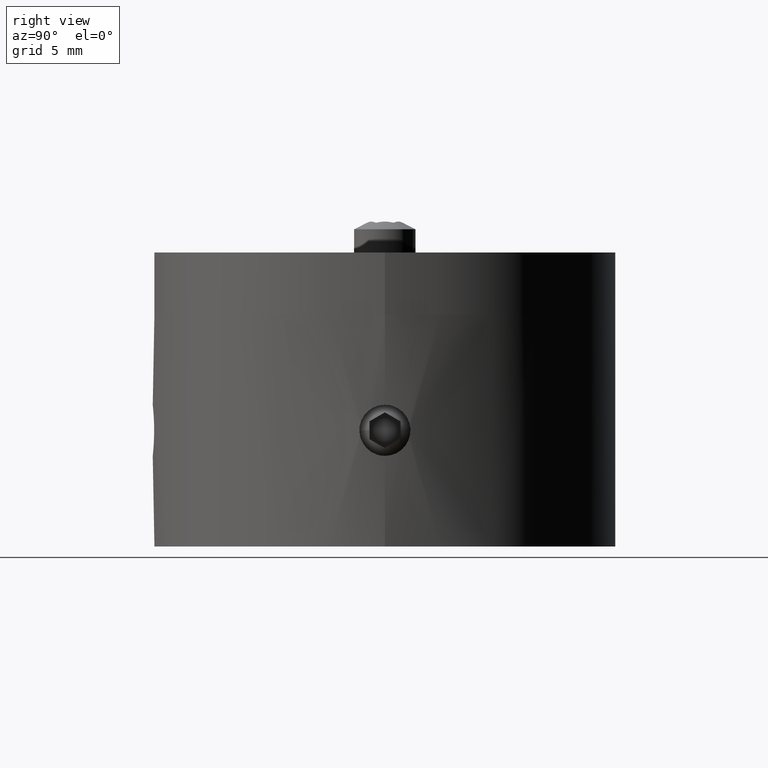
[diagram: clean part render]
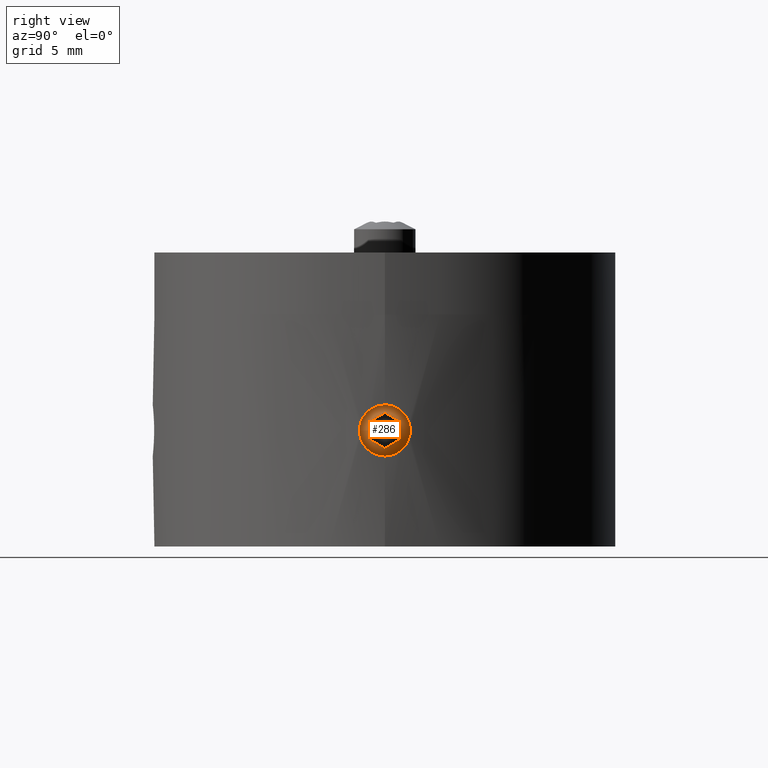
[diagram: same view with one face highlighted and labeled with its STEP entity id]
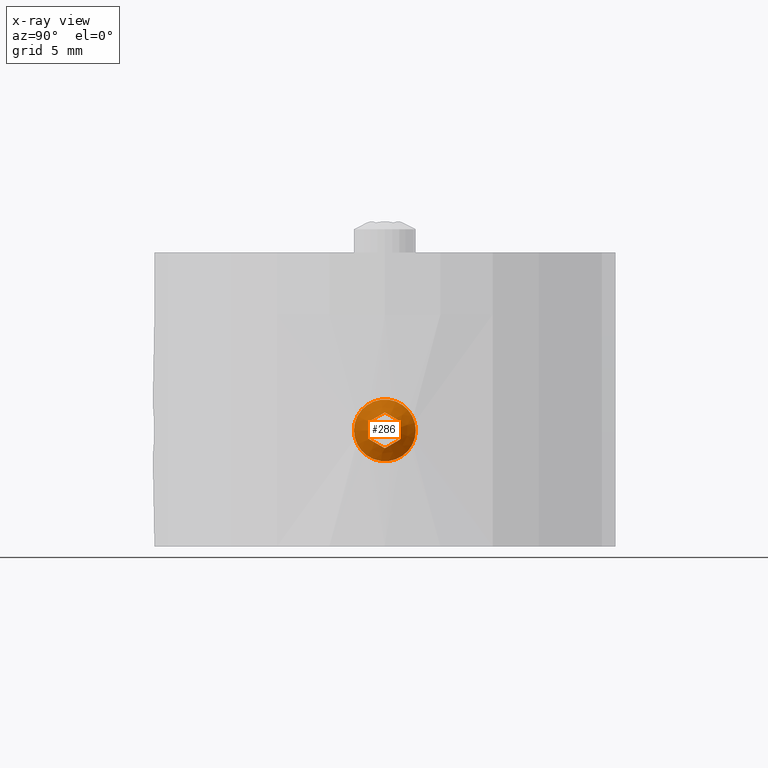
[diagram: x-ray of the same camera — body ghosted, the highlighted face saturated]
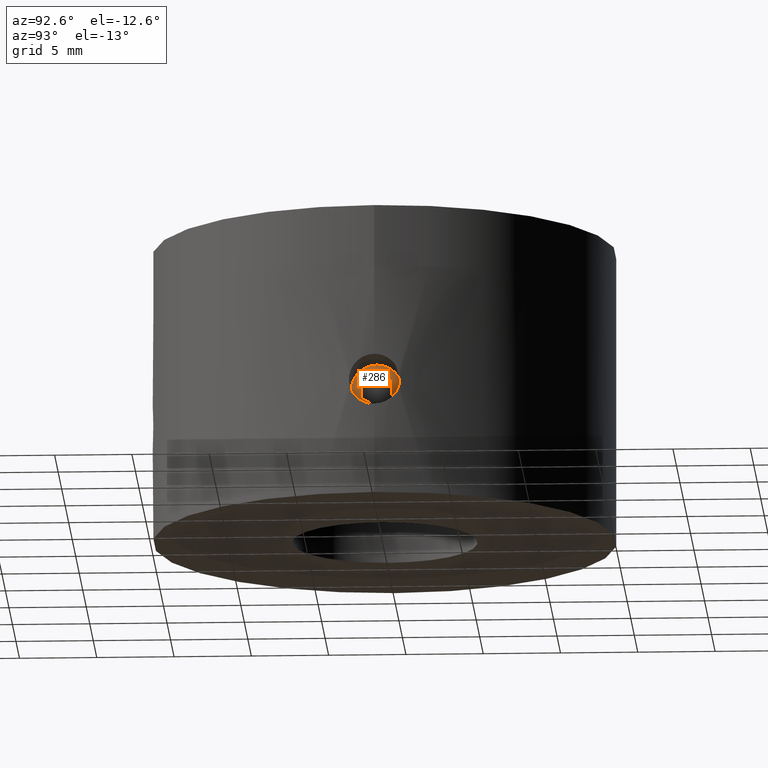
[diagram: same view with one face highlighted and labeled with its STEP entity id]
A machine part, right view. The second image highlights one B-rep face of the part: STEP entity #286.
The next image is the same camera in x-ray: the body ghosted, the highlighted face saturated — about 0% of this face is hidden behind the body in this view.
A second angle (auxiliary view) of the same face is appended — the face is thin or edge-on in the first view.
In plain terms, the highlighted conical surface has half-angle 63.435 deg.
Its self-contained STEP definition (entity closure, byte-faithful):
#286 = ADVANCED_FACE( '', ( #334, #335 ), #336, .T. );
#334 = FACE_OUTER_BOUND( '', #395, .T. );
#335 = FACE_BOUND( '', #396, .T. );
#336 = CONICAL_SURFACE( '', #397, 2.00000000000000, 1.10714871779409 );
#395 = EDGE_LOOP( '', ( #475 ) );
#396 = EDGE_LOOP( '', ( #476, #477, #478, #479, #480, #481 ) );
#397 = AXIS2_PLACEMENT_3D( '', #482, #483, #484 );
#475 = ORIENTED_EDGE( '', *, *, #563, .F. );
#476 = ORIENTED_EDGE( '', *, *, #564, .T. );
#477 = ORIENTED_EDGE( '', *, *, #565, .T. );
#478 = ORIENTED_EDGE( '', *, *, #566, .T. );
#479 = ORIENTED_EDGE( '', *, *, #567, .T. );
#480 = ORIENTED_EDGE( '', *, *, #568, .T. );
#481 = ORIENTED_EDGE( '', *, *, #569, .T. );
#482 = CARTESIAN_POINT( '', ( 0.000000000000000, 0.000000000000000, 5.50000000000000 ) );
#483 = DIRECTION( '', ( -0.000000000000000, -0.000000000000000, -1.00000000000000 ) );
#484 = DIRECTION( '', ( -1.00000000000000, 0.000000000000000, 0.000000000000000 ) );
#563 = EDGE_CURVE( '', #609, #609, #610, .T. );
#564 = EDGE_CURVE( '', #611, #612, #613, .T. );
#565 = EDGE_CURVE( '', #612, #614, #615, .T. );
#566 = EDGE_CURVE( '', #614, #616, #617, .T. );
#567 = EDGE_CURVE( '', #616, #618, #619, .F. );
#568 = EDGE_CURVE( '', #618, #620, #621, .T. );
#569 = EDGE_CURVE( '', #620, #611, #622, .T. );
#609 = VERTEX_POINT( '', #881 );
#610 = CIRCLE( '', #882, 2.00000000000000 );
#611 = VERTEX_POINT( '', #883 );
#612 = VERTEX_POINT( '', #884 );
#613 = B_SPLINE_CURVE_WITH_KNOTS( '', 3, ( #885, #886, #887, #888, #889, #890 ), .UNSPECIFIED., .F., .F., ( 4, 2, 4 ), ( 0.00103458309332885, 0.00161823594737898, 0.00220188880142910 ), .UNSPECIFIED. );
#614 = VERTEX_POINT( '', #891 );
#615 = B_SPLINE_CURVE_WITH_KNOTS( '', 3, ( #892, #893, #894, #895, #896, #897 ), .UNSPECIFIED., .F., .F., ( 4, 2, 4 ), ( 2.34956865816957E-007, 0.000579233426840285, 0.00115823189681475 ), .UNSPECIFIED. );
#616 = VERTEX_POINT( '', #898 );
#617 = B_SPLINE_CURVE_WITH_KNOTS( '', 3, ( #899, #900, #901, #902, #903, #904 ), .UNSPECIFIED., .F., .F., ( 4, 2, 4 ), ( 2.34956865817124E-007, 0.000579233426840285, 0.00115823189681475 ), .UNSPECIFIED. );
#618 = VERTEX_POINT( '', #905 );
#619 = B_SPLINE_CURVE_WITH_KNOTS( '', 3, ( #906, #907, #908, #909, #910, #911 ), .UNSPECIFIED., .F., .F., ( 4, 2, 4 ), ( 0.00103458309332885, 0.00161823594737898, 0.00220188880142910 ), .UNSPECIFIED. );
#620 = VERTEX_POINT( '', #912 );
#621 = B_SPLINE_CURVE_WITH_KNOTS( '', 3, ( #913, #914, #915, #916, #917, #918 ), .UNSPECIFIED., .F., .F., ( 4, 2, 4 ), ( 2.34956865816957E-007, 0.000579233426840285, 0.00115823189681475 ), .UNSPECIFIED. );
#622 = B_SPLINE_CURVE_WITH_KNOTS( '', 3, ( #919, #920, #921, #922, #923, #924 ), .UNSPECIFIED., .F., .F., ( 4, 2, 4 ), ( 2.34956865817119E-007, 0.000579233426840285, 0.00115823189681475 ), .UNSPECIFIED. );
#881 = CARTESIAN_POINT( '', ( -2.00000000000000, 0.000000000000000, 5.50000000000000 ) );
#882 = AXIS2_PLACEMENT_3D( '', #983, #984, #985 );
#883 = CARTESIAN_POINT( '', ( -1.00000000000000, -0.577350269189626, 5.92264973081037 ) );
#884 = CARTESIAN_POINT( '', ( -1.00000000000000, 0.577350269189626, 5.92264973081037 ) );
#885 = CARTESIAN_POINT( '', ( -1.00000000000000, -0.577350269189626, 5.92264973081038 ) );
#886 = CARTESIAN_POINT( '', ( -1.00000000000000, -0.387960270642686, 5.96999723044711 ) );
#887 = CARTESIAN_POINT( '', ( -1.00000000000000, -0.193897498925762, 5.99997405626547 ) );
#888 = CARTESIAN_POINT( '', ( -1.00000000000000, 0.193361923930962, 6.00002590787946 ) );
#889 = CARTESIAN_POINT( '', ( -1.00000000000000, 0.389530102282244, 5.96960477253746 ) );
#890 = CARTESIAN_POINT( '', ( -1.00000000000000, 0.577350269189699, 5.92264973081059 ) );
#891 = CARTESIAN_POINT( '', ( 0.000000000000000, 1.15470053837925, 5.92264973081037 ) );
#892 = CARTESIAN_POINT( '', ( -1.00000000000000, 0.577350269189626, 5.92264973081037 ) );
#893 = CARTESIAN_POINT( '', ( -0.835714454593608, 0.672200573053970, 5.97007488274255 ) );
#894 = CARTESIAN_POINT( '', ( -0.670138468625594, 0.767795913123941, 5.99972641485991 ) );
#895 = CARTESIAN_POINT( '', ( -0.334720282664987, 0.961449693079393, 6.00026965057048 ) );
#896 = CARTESIAN_POINT( '', ( -0.164913583655277, 1.05948763646285, 5.97025618176874 ) );
#897 = CARTESIAN_POINT( '', ( 2.43844823692196E-014, 1.15470053837927, 5.92264973081053 ) );
#898 = CARTESIAN_POINT( '', ( 1.00000000000000, 0.577350269189626, 5.92264973081037 ) );
#899 = CARTESIAN_POINT( '', ( 2.46763538568854E-017, 1.15470053837925, 5.92264973081037 ) );
#900 = CARTESIAN_POINT( '', ( 0.164285545406392, 1.05985023451491, 5.97007488274255 ) );
#901 = CARTESIAN_POINT( '', ( 0.329861531374406, 0.964254894444936, 5.99972641485991 ) );
#902 = CARTESIAN_POINT( '', ( 0.665279717335012, 0.770601114489484, 6.00026965057048 ) );
#903 = CARTESIAN_POINT( '', ( 0.835086416344722, 0.672563171106026, 5.97025618176874 ) );
#904 = CARTESIAN_POINT( '', ( 1.00000000000002, 0.577350269189612, 5.92264973081053 ) );
#905 = CARTESIAN_POINT( '', ( 1.00000000000000, -0.577350269189626, 5.92264973081037 ) );
#906 = CARTESIAN_POINT( '', ( 1.00000000000000, -0.577350269189626, 5.92264973081038 ) );
#907 = CARTESIAN_POINT( '', ( 1.00000000000000, -0.387960270642686, 5.96999723044711 ) );
#908 = CARTESIAN_POINT( '', ( 1.00000000000000, -0.193897498925762, 5.99997405626547 ) );
#909 = CARTESIAN_POINT( '', ( 1.00000000000000, 0.193361923930962, 6.00002590787946 ) );
#910 = CARTESIAN_POINT( '', ( 1.00000000000000, 0.389530102282244, 5.96960477253746 ) );
#911 = CARTESIAN_POINT( '', ( 1.00000000000000, 0.577350269189699, 5.92264973081059 ) );
#912 = CARTESIAN_POINT( '', ( -2.10101866403920E-016, -1.15470053837925, 5.92264973081037 ) );
#913 = CARTESIAN_POINT( '', ( 1.00000000000000, -0.577350269189626, 5.92264973081037 ) );
#914 = CARTESIAN_POINT( '', ( 0.835714454593608, -0.672200573053971, 5.97007488274255 ) );
#915 = CARTESIAN_POINT( '', ( 0.670138468625594, -0.767795913123942, 5.99972641485991 ) );
#916 = CARTESIAN_POINT( '', ( 0.334720282664987, -0.961449693079393, 6.00026965057048 ) );
#917 = CARTESIAN_POINT( '', ( 0.164913583655277, -1.05948763646285, 5.97025618176874 ) );
#918 = CARTESIAN_POINT( '', ( -2.45022263595377E-014, -1.15470053837927, 5.92264973081053 ) );
#919 = CARTESIAN_POINT( '', ( -2.37796229708607E-016, -1.15470053837925, 5.92264973081037 ) );
#920 = CARTESIAN_POINT( '', ( -0.164285545406392, -1.05985023451491, 5.97007488274255 ) );
#921 = CARTESIAN_POINT( '', ( -0.329861531374406, -0.964254894444936, 5.99972641485991 ) );
#922 = CARTESIAN_POINT( '', ( -0.665279717335013, -0.770601114489484, 6.00026965057048 ) );
#923 = CARTESIAN_POINT( '', ( -0.835086416344722, -0.672563171106026, 5.97025618176874 ) );
#924 = CARTESIAN_POINT( '', ( -1.00000000000002, -0.577350269189612, 5.92264973081053 ) );
#983 = CARTESIAN_POINT( '', ( 0.000000000000000, 0.000000000000000, 5.50000000000000 ) );
#984 = DIRECTION( '', ( -0.000000000000000, 0.000000000000000, -1.00000000000000 ) );
#985 = DIRECTION( '', ( -1.00000000000000, 0.000000000000000, 0.000000000000000 ) );